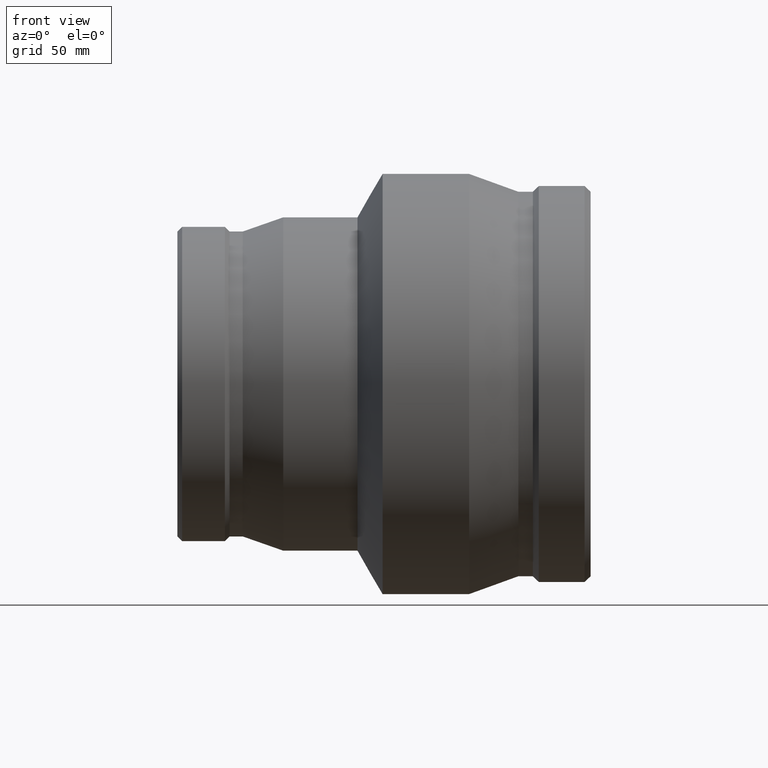
[diagram: clean part render]
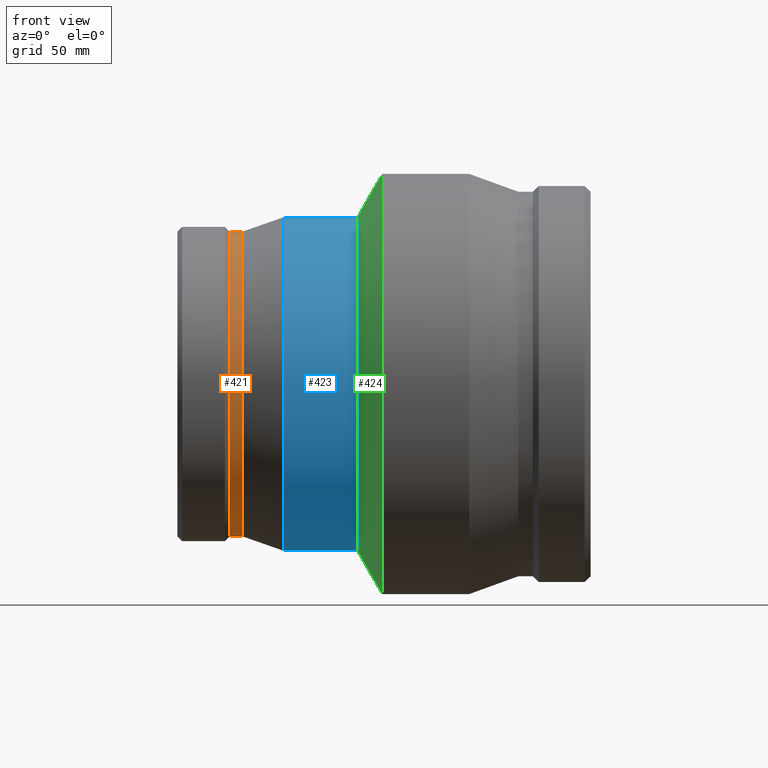
[diagram: same view with three faces highlighted in distinct colors, each labeled with its STEP entity id]
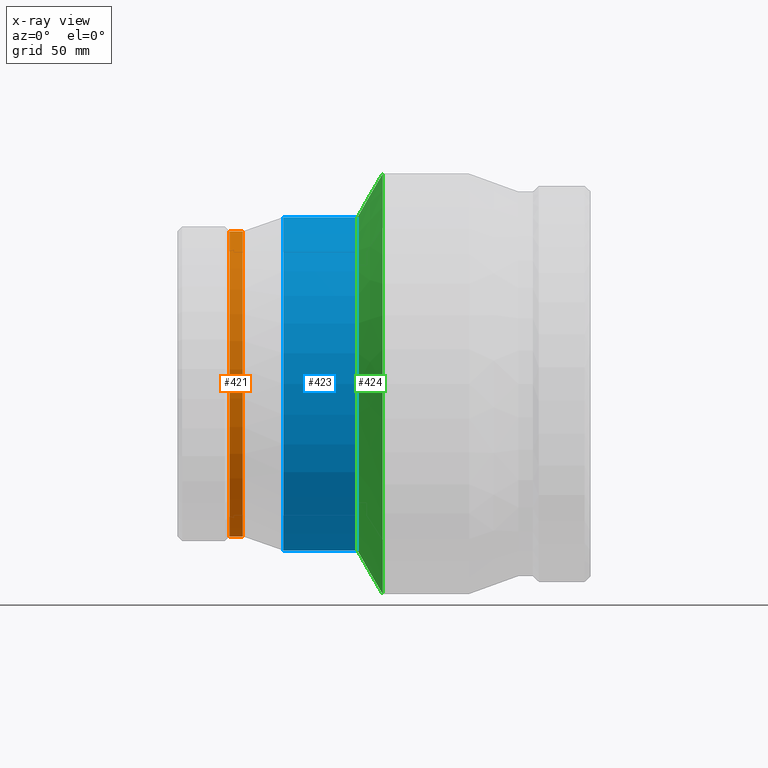
[diagram: x-ray of the same camera — body ghosted, the three highlighted faces saturated]
A machine part, front view with three faces highlighted in distinct colors.
The next image is the same camera in x-ray (body ghosted, the three faces saturated) — at least one of them is partly hidden behind the body in this view.
Their STEP definitions:

[orange] entity #421 — the highlighted cylindrical surface (bore or boss wall) has radius 72.0322 mm, axis along (1, 0, 0).
#44=FACE_BOUND('',#154,.T.);
#73=CYLINDRICAL_SURFACE('',#477,72.0322);
#99=FACE_OUTER_BOUND('',#153,.T.);
#153=EDGE_LOOP('',(#346));
#154=EDGE_LOOP('',(#347));
#214=CIRCLE('',#476,72.0322);
#215=CIRCLE('',#478,72.0322);
#253=VERTEX_POINT('',#791);
#254=VERTEX_POINT('',#794);
#292=EDGE_CURVE('',#253,#253,#214,.T.);
#293=EDGE_CURVE('',#254,#254,#215,.T.);
#346=ORIENTED_EDGE('',*,*,#292,.T.);
#347=ORIENTED_EDGE('',*,*,#293,.F.);
#421=ADVANCED_FACE('',(#99,#44),#73,.T.);
#476=AXIS2_PLACEMENT_3D('',#792,#584,#585);
#477=AXIS2_PLACEMENT_3D('',#793,#586,#587);
#478=AXIS2_PLACEMENT_3D('',#795,#588,#589);
#584=DIRECTION('center_axis',(1.,0.,0.));
#585=DIRECTION('ref_axis',(0.,0.,-1.));
#586=DIRECTION('center_axis',(1.,0.,0.));
#587=DIRECTION('ref_axis',(0.,1.,0.));
#588=DIRECTION('center_axis',(1.,0.,0.));
#589=DIRECTION('ref_axis',(0.,0.,-1.));
#791=CARTESIAN_POINT('',(-72.85,72.0322,0.));
#792=CARTESIAN_POINT('Origin',(-72.85,0.,0.));
#793=CARTESIAN_POINT('Origin',(-69.76875,0.,0.));
#794=CARTESIAN_POINT('',(-66.6875,72.0322,0.));
#795=CARTESIAN_POINT('Origin',(-66.6875,0.,0.));

[blue] entity #423 — the highlighted cylindrical surface (bore or boss wall) has radius 79 mm, axis along (1, 0, 0).
#46=FACE_BOUND('',#158,.T.);
#74=CYLINDRICAL_SURFACE('',#481,79.);
#101=FACE_OUTER_BOUND('',#157,.T.);
#157=EDGE_LOOP('',(#350));
#158=EDGE_LOOP('',(#351));
#216=CIRCLE('',#480,79.);
#217=CIRCLE('',#482,79.);
#255=VERTEX_POINT('',#797);
#256=VERTEX_POINT('',#800);
#294=EDGE_CURVE('',#255,#255,#216,.T.);
#295=EDGE_CURVE('',#256,#256,#217,.T.);
#350=ORIENTED_EDGE('',*,*,#294,.T.);
#351=ORIENTED_EDGE('',*,*,#295,.F.);
#423=ADVANCED_FACE('',(#101,#46),#74,.T.);
#480=AXIS2_PLACEMENT_3D('',#798,#592,#593);
#481=AXIS2_PLACEMENT_3D('',#799,#594,#595);
#482=AXIS2_PLACEMENT_3D('',#801,#596,#597);
#592=DIRECTION('center_axis',(1.,0.,0.));
#593=DIRECTION('ref_axis',(0.,0.,-1.));
#594=DIRECTION('center_axis',(1.,0.,0.));
#595=DIRECTION('ref_axis',(0.,1.,0.));
#596=DIRECTION('center_axis',(1.,0.,0.));
#597=DIRECTION('ref_axis',(0.,0.,-1.));
#797=CARTESIAN_POINT('',(-47.5436268367241,79.,0.));
#798=CARTESIAN_POINT('Origin',(-47.5436268367241,0.,0.));
#799=CARTESIAN_POINT('Origin',(-30.0218134183621,0.,0.));
#800=CARTESIAN_POINT('',(-12.5,79.,0.));
#801=CARTESIAN_POINT('Origin',(-12.5,0.,0.));

[green] entity #424 — the highlighted conical surface has half-angle 60 deg.
#22=CONICAL_SURFACE('',#483,89.25,60.0000000000001);
#47=FACE_BOUND('',#160,.T.);
#102=FACE_OUTER_BOUND('',#159,.T.);
#159=EDGE_LOOP('',(#352));
#160=EDGE_LOOP('',(#353));
#217=CIRCLE('',#482,79.);
#218=CIRCLE('',#484,99.5);
#256=VERTEX_POINT('',#800);
#257=VERTEX_POINT('',#803);
#295=EDGE_CURVE('',#256,#256,#217,.T.);
#296=EDGE_CURVE('',#257,#257,#218,.T.);
#352=ORIENTED_EDGE('',*,*,#295,.T.);
#353=ORIENTED_EDGE('',*,*,#296,.F.);
#424=ADVANCED_FACE('',(#102,#47),#22,.T.);
#482=AXIS2_PLACEMENT_3D('',#801,#596,#597);
#483=AXIS2_PLACEMENT_3D('',#802,#598,#599);
#484=AXIS2_PLACEMENT_3D('',#804,#600,#601);
#596=DIRECTION('center_axis',(1.,0.,0.));
#597=DIRECTION('ref_axis',(0.,0.,-1.));
#598=DIRECTION('center_axis',(1.,0.,0.));
#599=DIRECTION('ref_axis',(0.,1.,0.));
#600=DIRECTION('center_axis',(1.,0.,0.));
#601=DIRECTION('ref_axis',(0.,0.,-1.));
#800=CARTESIAN_POINT('',(-12.5,79.,0.));
#801=CARTESIAN_POINT('Origin',(-12.5,0.,0.));
#802=CARTESIAN_POINT('Origin',(-6.58215974080635,0.,0.));
#803=CARTESIAN_POINT('',(-0.664319481612687,99.5,0.));
#804=CARTESIAN_POINT('Origin',(-0.664319481612683,0.,0.));